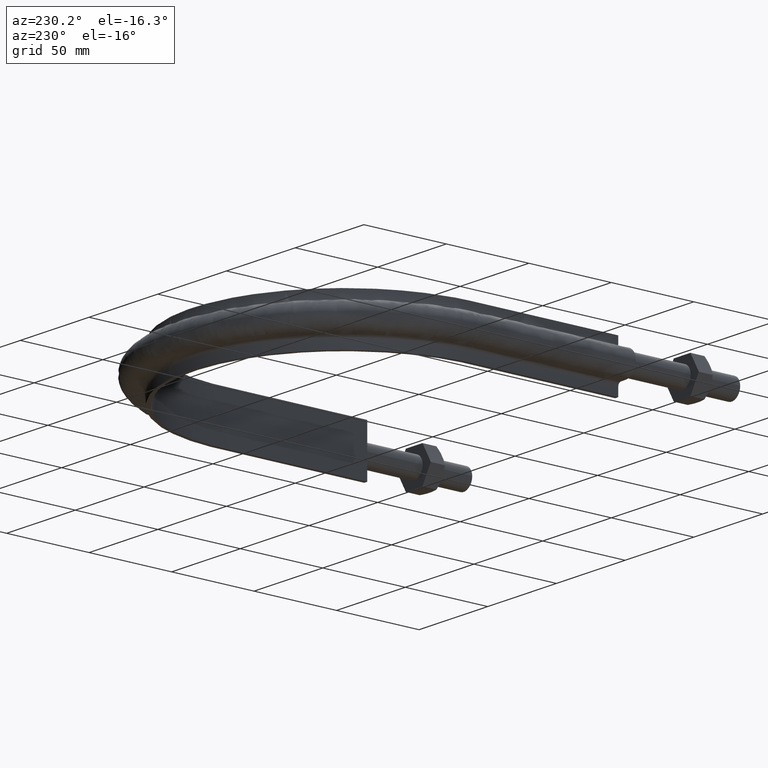
[diagram: clean part render]
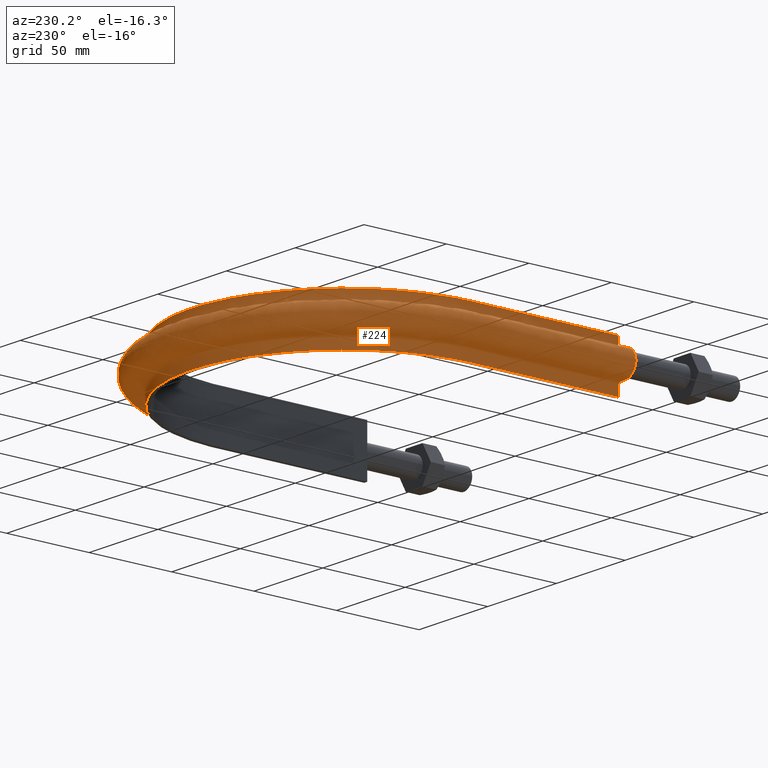
[diagram: same view with one face highlighted and labeled with its STEP entity id]
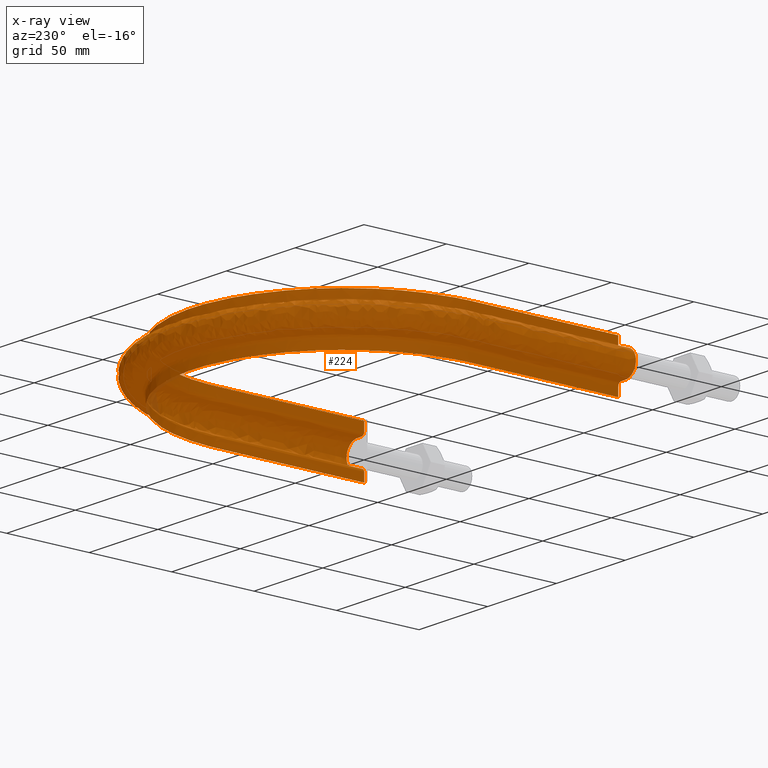
[diagram: x-ray of the same camera — body ghosted, the highlighted face saturated]
A machine part, auxiliary view. The second image highlights one B-rep face of the part: STEP entity #224.
The next image is the same camera in x-ray: the body ghosted, the highlighted face saturated — about 1% of this face is hidden behind the body in this view.
In plain terms, the highlighted face is a freeform B-spline surface patch.
Its self-contained STEP definition (entity closure, byte-faithful):
#224 = ADVANCED_FACE( '', ( #270 ), #271, .F. );
#270 = FACE_OUTER_BOUND( '', #367, .T. );
#271 = B_SPLINE_SURFACE_WITH_KNOTS( '', 3, 3, ( ( #368, #369, #370, #371, #372, #373, #374, #375, #376, #377, #378, #379, #380, #381, #382, #383, #384 ), ( #385, #386, #387, #388, #389, #390, #391, #392, #393, #394, #395, #396, #397, #398, #399, #400, #401 ), ( #402, #403, #404, #405, #406, #407, #408, #409, #410, #411, #412, #413, #414, #415, #416, #417, #418 ), ( #419, #420, #421, #422, #423, #424, #425, #426, #427, #428, #429, #430, #431, #432, #433, #434, #435 ), ( #436, #437, #438, #439, #440, #441, #442, #443, #444, #445, #446, #447, #448, #449, #450, #451, #452 ), ( #453, #454, #455, #456, #457, #458, #459, #460, #461, #462, #463, #464, #465, #466, #467, #468, #469 ), ( #470, #471, #472, #473, #474, #475, #476, #477, #478, #479, #480, #481, #482, #483, #484, #485, #486 ), ( #487, #488, #489, #490, #491, #492, #493, #494, #495, #496, #497, #498, #499, #500, #501, #502, #503 ), ( #504, #505, #506, #507, #508, #509, #510, #511, #512, #513, #514, #515, #516, #517, #518, #519, #520 ), ( #521, #522, #523, #524, #525, #526, #527, #528, #529, #530, #531, #532, #533, #534, #535, #536, #537 ), ( #538, #539, #540, #541, #542, #543, #544, #545, #546, #547, #548, #549, #550, #551, #552, #553, #554 ), ( #555, #556, #557, #558, #559, #560, #561, #562, #563, #564, #565, #566, #567, #568, #569, #570, #571 ), ( #572, #573, #574, #575, #576, #577, #578, #579, #580, #581, #582, #583, #584, #585, #586, #587, #588 ), ( #589, #590, #591, #592, #593, #594, #595, #596, #597, #598, #599, #600, #601, #602, #603, #604, #605 ), ( #606, #607, #608, #609, #610, #611, #612, #613, #614, #615, #616, #617, #618, #619, #620, #621, #622 ), ( #623, #624, #625, #626, #627, #628, #629, #630, #631, #632, #633, #634, #635, #636, #637, #638, #639 ), ( #640, #641, #642, #643, #644, #645, #646, #647, #648, #649, #650, #651, #652, #653, #654, #655, #656 ), ( #657, #658, #659, #660, #661, #662, #663, #664, #665, #666, #667, #668, #669, #670, #671, #672, #673 ), ( #674, #675, #676, #677, #678, #679, #680, #681, #682, #683, #684, #685, #686, #687, #688, #689, #690 ), ( #691, #692, #693, #694, #695, #696, #697, #698, #699, #700, #701, #702, #703, #704, #705, #706, #707 ), ( #708, #709, #710, #711, #712, #713, #714, #715, #716, #717, #718, #719, #720, #721, #722, #723, #724 ), ( #725, #726, #727, #728, #729, #730, #731, #732, #733, #734, #735, #736, #737, #738, #739, #740, #741 ), ( #742, #743, #744, #745, #746, #747, #748, #749, #750, #751, #752, #753, #754, #755, #756, #757, #758 ), ( #759, #760, #761, #762, #763, #764, #765, #766, #767, #768, #769, #770, #771, #772, #773, #774, #775 ), ( #776, #777, #778, #779, #780, #781, #782, #783, #784, #785, #786, #787, #788, #789, #790, #791, #792 ), ( #793, #794, #795, #796, #797, #798, #799, #800, #801, #802, #803, #804, #805, #806, #807, #808, #809 ), ( #810, #811, #812, #813, #814, #815, #816, #817, #818, #819, #820, #821, #822, #823, #824, #825, #826 ), ( #827, #828, #829, #830, #831, #832, #833, #834, #835, #836, #837, #838, #839, #840, #841, #842, #843 ), ( #844, #845, #846, #847, #848, #849, #850, #851, #852, #853, #854, #855, #856, #857, #858, #859, #860 ), ( #861, #862, #863, #864, #865, #866, #867, #868, #869, #870, #871, #872, #873, #874, #875, #876, #877 ), ( #878, #879, #880, #881, #882, #883, #884, #885, #886, #887, #888, #889, #890, #891, #892, #893, #894 ) ), .UNSPECIFIED., .F., .F., .F., ( 4, 3, 1, 1, 1, 3, 3, 1, 1, 1, 3, 3, 1, 1, 1, 3, 4 ), ( 4, 3, 1, 1, 1, 1, 1, 1, 1, 3, 4 ), ( 0.105263157894737, 0.157894736842105, 0.210526315789474, 0.263157894736842, 0.315789473684211, 0.368421052631579, 0.421052631578947, 0.473684210526316, 0.526315789473684, 0.578947368421053, 0.631578947368421, 0.684210526315789, 0.736842105263158, 0.789473684210526, 0.842105263157895, 0.894736842105263, 0.947368421052632 ), ( 0.000000000000000, 1.00000000000000, 2.00000000000000, 3.00000000000000, 4.00000000000000, 5.00000000000000, 6.00000000000000, 7.00000000000000, 8.00000000000000, 9.00000000000000, 10.0000000000000 ), .UNSPECIFIED. );
#367 = EDGE_LOOP( '', ( #1401, #1402, #1403, #1404 ) );
#368 = CARTESIAN_POINT( '', ( 92.4500000000000, 64.5000000000000, -15.0000000000000 ) );
#369 = CARTESIAN_POINT( '', ( 92.4500000000000, 94.2500000000000, -15.0000000000000 ) );
#370 = CARTESIAN_POINT( '', ( 92.4500000000000, 124.000000000000, -15.0000000000000 ) );
#371 = CARTESIAN_POINT( '', ( 92.4500000000000, 153.750000000000, -15.0000000000000 ) );
#372 = CARTESIAN_POINT( '', ( 92.4500000000000, 165.841331079143, -15.0000000000000 ) );
#373 = CARTESIAN_POINT( '', ( 87.6363015277602, 190.054191891286, -15.0000000000000 ) );
#374 = CARTESIAN_POINT( '', ( 67.0739213368505, 220.822831694701, -15.0000000000000 ) );
#375 = CARTESIAN_POINT( '', ( 36.3001446490162, 241.386612854088, -15.0000000000000 ) );
#376 = CARTESIAN_POINT( '', ( 6.16695562228040E-014, 248.606693572956, -15.0000000000000 ) );
#377 = CARTESIAN_POINT( '', ( -36.3001446490162, 241.386612854089, -15.0000000000000 ) );
#378 = CARTESIAN_POINT( '', ( -67.0739213368504, 220.822831694701, -15.0000000000000 ) );
#379 = CARTESIAN_POINT( '', ( -87.6363015277601, 190.054191891286, -15.0000000000000 ) );
#380 = CARTESIAN_POINT( '', ( -92.4500000000000, 165.841331079143, -15.0000000000000 ) );
#381 = CARTESIAN_POINT( '', ( -92.4500000000000, 153.750000000000, -15.0000000000000 ) );
#382 = CARTESIAN_POINT( '', ( -92.4499999999999, 124.000000000000, -15.0000000000000 ) );
#383 = CARTESIAN_POINT( '', ( -92.4499999999999, 94.2500000000000, -15.0000000000000 ) );
#384 = CARTESIAN_POINT( '', ( -92.4500000000000, 64.5000000000001, -15.0000000000000 ) );
#385 = CARTESIAN_POINT( '', ( 92.4500000000000, 64.5000000000000, -13.2666666666667 ) );
#386 = CARTESIAN_POINT( '', ( 92.4500000000000, 94.2500000000000, -13.2666666666667 ) );
#387 = CARTESIAN_POINT( '', ( 92.4500000000000, 124.000000000000, -13.2666666666667 ) );
#388 = CARTESIAN_POINT( '', ( 92.4500000000000, 153.750000000000, -13.2666666666667 ) );
#389 = CARTESIAN_POINT( '', ( 92.4500000000000, 165.841331079143, -13.2666666666667 ) );
#390 = CARTESIAN_POINT( '', ( 87.6363015277602, 190.054191891286, -13.2666666666667 ) );
#391 = CARTESIAN_POINT( '', ( 67.0739213368505, 220.822831694701, -13.2666666666667 ) );
#392 = CARTESIAN_POINT( '', ( 36.3001446490162, 241.386612854088, -13.2666666666667 ) );
#393 = CARTESIAN_POINT( '', ( 5.99348327468272E-014, 248.606693572956, -13.2666666666667 ) );
#394 = CARTESIAN_POINT( '', ( -36.3001446490162, 241.386612854089, -13.2666666666667 ) );
#395 = CARTESIAN_POINT( '', ( -67.0739213368504, 220.822831694701, -13.2666666666667 ) );
#396 = CARTESIAN_POINT( '', ( -87.6363015277601, 190.054191891286, -13.2666666666667 ) );
#397 = CARTESIAN_POINT( '', ( -92.4500000000000, 165.841331079143, -13.2666666666667 ) );
#398 = CARTESIAN_POINT( '', ( -92.4500000000000, 153.750000000000, -13.2666666666667 ) );
#399 = CARTESIAN_POINT( '', ( -92.4499999999999, 124.000000000000, -13.2666666666667 ) );
#400 = CARTESIAN_POINT( '', ( -92.4499999999999, 94.2500000000000, -13.2666666666667 ) );
#401 = CARTESIAN_POINT( '', ( -92.4500000000000, 64.5000000000001, -13.2666666666667 ) );
#402 = CARTESIAN_POINT( '', ( 92.4500000000000, 64.5000000000000, -11.5333333333333 ) );
#403 = CARTESIAN_POINT( '', ( 92.4500000000000, 94.2500000000000, -11.5333333333333 ) );
#404 = CARTESIAN_POINT( '', ( 92.4500000000000, 124.000000000000, -11.5333333333333 ) );
#405 = CARTESIAN_POINT( '', ( 92.4500000000000, 153.750000000000, -11.5333333333333 ) );
#406 = CARTESIAN_POINT( '', ( 92.4500000000000, 165.841331079143, -11.5333333333333 ) );
#407 = CARTESIAN_POINT( '', ( 87.6363015277601, 190.054191891286, -11.5333333333333 ) );
#408 = CARTESIAN_POINT( '', ( 67.0739213368505, 220.822831694701, -11.5333333333333 ) );
#409 = CARTESIAN_POINT( '', ( 36.3001446490162, 241.386612854088, -11.5333333333333 ) );
#410 = CARTESIAN_POINT( '', ( 6.68737266507344E-014, 248.606693572956, -11.5333333333333 ) );
#411 = CARTESIAN_POINT( '', ( -36.3001446490162, 241.386612854089, -11.5333333333333 ) );
#412 = CARTESIAN_POINT( '', ( -67.0739213368504, 220.822831694701, -11.5333333333333 ) );
#413 = CARTESIAN_POINT( '', ( -87.6363015277601, 190.054191891286, -11.5333333333333 ) );
#414 = CARTESIAN_POINT( '', ( -92.4500000000000, 165.841331079143, -11.5333333333333 ) );
#415 = CARTESIAN_POINT( '', ( -92.4500000000000, 153.750000000000, -11.5333333333333 ) );
#416 = CARTESIAN_POINT( '', ( -92.4499999999999, 124.000000000000, -11.5333333333333 ) );
#417 = CARTESIAN_POINT( '', ( -92.4499999999999, 94.2500000000000, -11.5333333333333 ) );
#418 = CARTESIAN_POINT( '', ( -92.4500000000000, 64.5000000000001, -11.5333333333333 ) );
#419 = CARTESIAN_POINT( '', ( 92.4500000000000, 64.5000000000000, -9.79999999999999 ) );
#420 = CARTESIAN_POINT( '', ( 92.4500000000000, 94.2500000000000, -9.79999999999999 ) );
#421 = CARTESIAN_POINT( '', ( 92.4500000000000, 124.000000000000, -9.79999999999999 ) );
#422 = CARTESIAN_POINT( '', ( 92.4500000000000, 153.750000000000, -9.79999999999999 ) );
#423 = CARTESIAN_POINT( '', ( 92.4500000000000, 165.841331079143, -9.79999999999999 ) );
#424 = CARTESIAN_POINT( '', ( 87.6363015277602, 190.054191891286, -9.79999999999999 ) );
#425 = CARTESIAN_POINT( '', ( 67.0739213368504, 220.822831694701, -9.79999999999999 ) );
#426 = CARTESIAN_POINT( '', ( 36.3001446490162, 241.386612854088, -9.79999999999998 ) );
#427 = CARTESIAN_POINT( '', ( 6.34042796987808E-014, 248.606693572956, -9.79999999999999 ) );
#428 = CARTESIAN_POINT( '', ( -36.3001446490162, 241.386612854089, -9.79999999999999 ) );
#429 = CARTESIAN_POINT( '', ( -67.0739213368504, 220.822831694701, -9.79999999999998 ) );
#430 = CARTESIAN_POINT( '', ( -87.6363015277601, 190.054191891286, -9.80000000000000 ) );
#431 = CARTESIAN_POINT( '', ( -92.4500000000000, 165.841331079143, -9.79999999999999 ) );
#432 = CARTESIAN_POINT( '', ( -92.4500000000000, 153.750000000000, -9.79999999999999 ) );
#433 = CARTESIAN_POINT( '', ( -92.4499999999999, 124.000000000000, -9.79999999999999 ) );
#434 = CARTESIAN_POINT( '', ( -92.4499999999999, 94.2500000000000, -9.79999999999999 ) );
#435 = CARTESIAN_POINT( '', ( -92.4499999999999, 64.5000000000001, -9.79999999999999 ) );
#436 = CARTESIAN_POINT( '', ( 92.4500000000000, 64.5000000000000, -9.53823584172332 ) );
#437 = CARTESIAN_POINT( '', ( 92.4500000000000, 94.2500000000000, -9.53823584172332 ) );
#438 = CARTESIAN_POINT( '', ( 92.4500000000000, 124.000000000000, -9.53823584172332 ) );
#439 = CARTESIAN_POINT( '', ( 92.4500000000000, 153.750000000000, -9.53823584172332 ) );
#440 = CARTESIAN_POINT( '', ( 92.4500000000000, 165.841331079143, -9.53823584172332 ) );
#441 = CARTESIAN_POINT( '', ( 87.6363015277602, 190.054191891286, -9.53823584172332 ) );
#442 = CARTESIAN_POINT( '', ( 67.0739213368504, 220.822831694701, -9.53823584172333 ) );
#443 = CARTESIAN_POINT( '', ( 36.3001446490162, 241.386612854088, -9.53823584172332 ) );
#444 = CARTESIAN_POINT( '', ( 6.34042796987808E-014, 248.606693572956, -9.53823584172333 ) );
#445 = CARTESIAN_POINT( '', ( -36.3001446490162, 241.386612854089, -9.53823584172333 ) );
#446 = CARTESIAN_POINT( '', ( -67.0739213368504, 220.822831694701, -9.53823584172332 ) );
#447 = CARTESIAN_POINT( '', ( -87.6363015277601, 190.054191891286, -9.53823584172333 ) );
#448 = CARTESIAN_POINT( '', ( -92.4500000000000, 165.841331079143, -9.53823584172332 ) );
#449 = CARTESIAN_POINT( '', ( -92.4500000000000, 153.750000000000, -9.53823584172332 ) );
#450 = CARTESIAN_POINT( '', ( -92.4499999999999, 124.000000000000, -9.53823584172332 ) );
#451 = CARTESIAN_POINT( '', ( -92.4499999999999, 94.2500000000000, -9.53823584172332 ) );
#452 = CARTESIAN_POINT( '', ( -92.4499999999999, 64.5000000000001, -9.53823584172332 ) );
#453 = CARTESIAN_POINT( '', ( 92.5541362568359, 64.5000000000000, -9.01470752517000 ) );
#454 = CARTESIAN_POINT( '', ( 92.5541362568359, 94.2500000000000, -9.01470752517000 ) );
#455 = CARTESIAN_POINT( '', ( 92.5541362568359, 124.000000000000, -9.01470752517000 ) );
#456 = CARTESIAN_POINT( '', ( 92.5541362568359, 153.750000000000, -9.01470752517000 ) );
#457 = CARTESIAN_POINT( '', ( 92.5541362568359, 165.855140405394, -9.01470752517000 ) );
#458 = CARTESIAN_POINT( '', ( 87.7350156046022, 190.094997142362, -9.01470752517000 ) );
#459 = CARTESIAN_POINT( '', ( 67.1494738203478, 220.898406647754, -9.01470752517000 ) );
#460 = CARTESIAN_POINT( '', ( 36.3410333584413, 241.485320511058, -9.01470752516999 ) );
#461 = CARTESIAN_POINT( '', ( 6.16826412098769E-014, 248.713544129725, -9.01470752517000 ) );
#462 = CARTESIAN_POINT( '', ( -36.3410333584413, 241.485320511058, -9.01470752517000 ) );
#463 = CARTESIAN_POINT( '', ( -67.1494738203477, 220.898406647754, -9.01470752516999 ) );
#464 = CARTESIAN_POINT( '', ( -87.7350156046021, 190.094997142362, -9.01470752517001 ) );
#465 = CARTESIAN_POINT( '', ( -92.5541362568359, 165.855140405394, -9.01470752517000 ) );
#466 = CARTESIAN_POINT( '', ( -92.5541362568359, 153.750000000000, -9.01470752517000 ) );
#467 = CARTESIAN_POINT( '', ( -92.5541362568358, 124.000000000000, -9.01470752517000 ) );
#468 = CARTESIAN_POINT( '', ( -92.5541362568358, 94.2500000000000, -9.01470752517000 ) );
#469 = CARTESIAN_POINT( '', ( -92.5541362568358, 64.5000000000001, -9.01470752517000 ) );
#470 = CARTESIAN_POINT( '', ( 92.9989687109389, 64.5000000000000, -8.34896871093886 ) );
#471 = CARTESIAN_POINT( '', ( 92.9989687109389, 94.2500000000000, -8.34896871093886 ) );
#472 = CARTESIAN_POINT( '', ( 92.9989687109389, 124.000000000000, -8.34896871093886 ) );
#473 = CARTESIAN_POINT( '', ( 92.9989687109389, 153.750000000000, -8.34896871093886 ) );
#474 = CARTESIAN_POINT( '', ( 92.9989687109389, 165.914128856416, -8.34896871093886 ) );
#475 = CARTESIAN_POINT( '', ( 88.1566864653604, 190.269302427843, -8.34896871093886 ) );
#476 = CARTESIAN_POINT( '', ( 67.4722067249944, 221.221235534220, -8.34896871093886 ) );
#477 = CARTESIAN_POINT( '', ( 36.5156951478249, 241.906963948439, -8.34896871093886 ) );
#478 = CARTESIAN_POINT( '', ( 6.00038120697290E-014, 249.169971092189, -8.34896871093886 ) );
#479 = CARTESIAN_POINT( '', ( -36.5156951478249, 241.906963948439, -8.34896871093886 ) );
#480 = CARTESIAN_POINT( '', ( -67.4722067249944, 221.221235534220, -8.34896871093886 ) );
#481 = CARTESIAN_POINT( '', ( -88.1566864653603, 190.269302427843, -8.34896871093887 ) );
#482 = CARTESIAN_POINT( '', ( -92.9989687109388, 165.914128856416, -8.34896871093886 ) );
#483 = CARTESIAN_POINT( '', ( -92.9989687109388, 153.750000000000, -8.34896871093886 ) );
#484 = CARTESIAN_POINT( '', ( -92.9989687109388, 124.000000000000, -8.34896871093886 ) );
#485 = CARTESIAN_POINT( '', ( -92.9989687109388, 94.2500000000000, -8.34896871093886 ) );
#486 = CARTESIAN_POINT( '', ( -92.9989687109388, 64.5000000000001, -8.34896871093886 ) );
#487 = CARTESIAN_POINT( '', ( 93.6647075251700, 64.5000000000000, -7.90413625683590 ) );
#488 = CARTESIAN_POINT( '', ( 93.6647075251700, 94.2500000000000, -7.90413625683590 ) );
#489 = CARTESIAN_POINT( '', ( 93.6647075251700, 124.000000000000, -7.90413625683590 ) );
#490 = CARTESIAN_POINT( '', ( 93.6647075251700, 153.750000000000, -7.90413625683590 ) );
#491 = CARTESIAN_POINT( '', ( 93.6647075251700, 166.002411312146, -7.90413625683590 ) );
#492 = CARTESIAN_POINT( '', ( 88.7877615055194, 190.530168722556, -7.90413625683590 ) );
#493 = CARTESIAN_POINT( '', ( 67.9552106498903, 221.704383106061, -7.90413625683590 ) );
#494 = CARTESIAN_POINT( '', ( 36.7770949883339, 242.537997946613, -7.90413625683589 ) );
#495 = CARTESIAN_POINT( '', ( 5.66180169028773E-014, 249.853062314448, -7.90413625683590 ) );
#496 = CARTESIAN_POINT( '', ( -36.7770949883339, 242.537997946613, -7.90413625683590 ) );
#497 = CARTESIAN_POINT( '', ( -67.9552106498903, 221.704383106061, -7.90413625683589 ) );
#498 = CARTESIAN_POINT( '', ( -88.7877615055192, 190.530168722556, -7.90413625683590 ) );
#499 = CARTESIAN_POINT( '', ( -93.6647075251700, 166.002411312146, -7.90413625683590 ) );
#500 = CARTESIAN_POINT( '', ( -93.6647075251700, 153.750000000000, -7.90413625683590 ) );
#501 = CARTESIAN_POINT( '', ( -93.6647075251699, 124.000000000000, -7.90413625683590 ) );
#502 = CARTESIAN_POINT( '', ( -93.6647075251699, 94.2500000000000, -7.90413625683590 ) );
#503 = CARTESIAN_POINT( '', ( -93.6647075251700, 64.5000000000001, -7.90413625683590 ) );
#504 = CARTESIAN_POINT( '', ( 94.1882358417233, 64.5000000000000, -7.79999999999999 ) );
#505 = CARTESIAN_POINT( '', ( 94.1882358417233, 94.2500000000000, -7.79999999999999 ) );
#506 = CARTESIAN_POINT( '', ( 94.1882358417233, 124.000000000000, -7.79999999999999 ) );
#507 = CARTESIAN_POINT( '', ( 94.1882358417233, 153.750000000000, -7.79999999999999 ) );
#508 = CARTESIAN_POINT( '', ( 94.1882358417234, 166.071835483370, -7.79999999999999 ) );
#509 = CARTESIAN_POINT( '', ( 89.2840306824560, 190.735310572779, -7.79999999999999 ) );
#510 = CARTESIAN_POINT( '', ( 68.3350386339045, 222.084324052159, -7.79999999999999 ) );
#511 = CARTESIAN_POINT( '', ( 36.9826564120088, 243.034234848669, -7.79999999999998 ) );
#512 = CARTESIAN_POINT( '', ( 6.18879700030734E-014, 250.390236338250, -7.79999999999999 ) );
#513 = CARTESIAN_POINT( '', ( -36.9826564120088, 243.034234848669, -7.79999999999999 ) );
#514 = CARTESIAN_POINT( '', ( -68.3350386339044, 222.084324052159, -7.79999999999998 ) );
#515 = CARTESIAN_POINT( '', ( -89.2840306824558, 190.735310572779, -7.80000000000000 ) );
#516 = CARTESIAN_POINT( '', ( -94.1882358417233, 166.071835483370, -7.79999999999999 ) );
#517 = CARTESIAN_POINT( '', ( -94.1882358417233, 153.750000000000, -7.79999999999999 ) );
#518 = CARTESIAN_POINT( '', ( -94.1882358417233, 124.000000000000, -7.79999999999999 ) );
#519 = CARTESIAN_POINT( '', ( -94.1882358417233, 94.2500000000000, -7.79999999999999 ) );
#520 = CARTESIAN_POINT( '', ( -94.1882358417233, 64.5000000000001, -7.79999999999999 ) );
#521 = CARTESIAN_POINT( '', ( 94.4500000000000, 64.5000000000000, -7.79999999999999 ) );
#522 = CARTESIAN_POINT( '', ( 94.4500000000000, 94.2500000000000, -7.79999999999999 ) );
#523 = CARTESIAN_POINT( '', ( 94.4500000000000, 124.000000000000, -7.79999999999999 ) );
#524 = CARTESIAN_POINT( '', ( 94.4500000000000, 153.750000000000, -7.79999999999999 ) );
#525 = CARTESIAN_POINT( '', ( 94.4500000000000, 166.106547568982, -7.79999999999999 ) );
#526 = CARTESIAN_POINT( '', ( 89.5321652709242, 190.837881497890, -7.79999999999999 ) );
#527 = CARTESIAN_POINT( '', ( 68.5249526259116, 222.274294525207, -7.79999999999999 ) );
#528 = CARTESIAN_POINT( '', ( 37.0854371238462, 243.282353299697, -7.79999999999998 ) );
#529 = CARTESIAN_POINT( '', ( 6.19208613392062E-014, 250.658823350152, -7.79999999999999 ) );
#530 = CARTESIAN_POINT( '', ( -37.0854371238462, 243.282353299697, -7.79999999999999 ) );
#531 = CARTESIAN_POINT( '', ( -68.5249526259115, 222.274294525207, -7.79999999999998 ) );
#532 = CARTESIAN_POINT( '', ( -89.5321652709241, 190.837881497890, -7.80000000000000 ) );
#533 = CARTESIAN_POINT( '', ( -94.4500000000000, 166.106547568982, -7.79999999999999 ) );
#534 = CARTESIAN_POINT( '', ( -94.4500000000000, 153.750000000000, -7.79999999999999 ) );
#535 = CARTESIAN_POINT( '', ( -94.4499999999999, 124.000000000000, -7.79999999999999 ) );
#536 = CARTESIAN_POINT( '', ( -94.4499999999999, 94.2500000000000, -7.79999999999999 ) );
#537 = CARTESIAN_POINT( '', ( -94.4499999999999, 64.5000000000001, -7.79999999999999 ) );
#538 = CARTESIAN_POINT( '', ( 95.4666666666667, 64.5000000000000, -7.79999999999999 ) );
#539 = CARTESIAN_POINT( '', ( 95.4666666666667, 94.2500000000000, -7.79999999999999 ) );
#540 = CARTESIAN_POINT( '', ( 95.4666666666667, 124.000000000000, -7.79999999999999 ) );
#541 = CARTESIAN_POINT( '', ( 95.4666666666667, 153.750000000000, -7.79999999999999 ) );
#542 = CARTESIAN_POINT( '', ( 95.4666666666667, 166.241365951317, -7.79999999999999 ) );
#543 = CARTESIAN_POINT( '', ( 90.4958960070327, 191.236257047914, -7.79999999999999 ) );
#544 = CARTESIAN_POINT( '', ( 69.2625601978510, 223.012121464048, -7.80000000000000 ) );
#545 = CARTESIAN_POINT( '', ( 37.4846274652181, 244.246021359548, -7.79999999999999 ) );
#546 = CARTESIAN_POINT( '', ( 6.55180550586642E-014, 251.701989320226, -7.79999999999999 ) );
#547 = CARTESIAN_POINT( '', ( -37.4846274652181, 244.246021359548, -7.79999999999999 ) );
#548 = CARTESIAN_POINT( '', ( -69.2625601978509, 223.012121464048, -7.79999999999999 ) );
#549 = CARTESIAN_POINT( '', ( -90.4958960070326, 191.236257047914, -7.80000000000000 ) );
#550 = CARTESIAN_POINT( '', ( -95.4666666666666, 166.241365951317, -7.79999999999999 ) );
#551 = CARTESIAN_POINT( '', ( -95.4666666666666, 153.750000000000, -7.79999999999999 ) );
#552 = CARTESIAN_POINT( '', ( -95.4666666666666, 124.000000000000, -7.79999999999999 ) );
#553 = CARTESIAN_POINT( '', ( -95.4666666666666, 94.2500000000000, -7.79999999999999 ) );
#554 = CARTESIAN_POINT( '', ( -95.4666666666666, 64.5000000000001, -7.79999999999999 ) );
#555 = CARTESIAN_POINT( '', ( 96.4833333333333, 64.5000000000000, -7.79999999999999 ) );
#556 = CARTESIAN_POINT( '', ( 96.4833333333333, 94.2500000000000, -7.79999999999999 ) );
#557 = CARTESIAN_POINT( '', ( 96.4833333333333, 124.000000000000, -7.79999999999999 ) );
#558 = CARTESIAN_POINT( '', ( 96.4833333333333, 153.750000000000, -7.79999999999999 ) );
#559 = CARTESIAN_POINT( '', ( 96.4833333333334, 166.376184333652, -7.79999999999999 ) );
#560 = CARTESIAN_POINT( '', ( 91.4596267431411, 191.634632597938, -7.79999999999999 ) );
#561 = CARTESIAN_POINT( '', ( 70.0001677697904, 223.749948402889, -7.80000000000000 ) );
#562 = CARTESIAN_POINT( '', ( 37.8838178065901, 245.209689419399, -7.79999999999999 ) );
#563 = CARTESIAN_POINT( '', ( 6.39110783501919E-014, 252.745155290301, -7.79999999999999 ) );
#564 = CARTESIAN_POINT( '', ( -37.8838178065900, 245.209689419399, -7.79999999999999 ) );
#565 = CARTESIAN_POINT( '', ( -70.0001677697904, 223.749948402889, -7.79999999999999 ) );
#566 = CARTESIAN_POINT( '', ( -91.4596267431410, 191.634632597938, -7.80000000000000 ) );
#567 = CARTESIAN_POINT( '', ( -96.4833333333333, 166.376184333652, -7.79999999999999 ) );
#568 = CARTESIAN_POINT( '', ( -96.4833333333333, 153.750000000000, -7.79999999999999 ) );
#569 = CARTESIAN_POINT( '', ( -96.4833333333333, 124.000000000000, -7.79999999999999 ) );
#570 = CARTESIAN_POINT( '', ( -96.4833333333333, 94.2500000000000, -7.79999999999999 ) );
#571 = CARTESIAN_POINT( '', ( -96.4833333333333, 64.5000000000001, -7.79999999999999 ) );
#572 = CARTESIAN_POINT( '', ( 97.5000000000000, 64.5000000000000, -7.79999999999999 ) );
#573 = CARTESIAN_POINT( '', ( 97.5000000000000, 94.2500000000000, -7.79999999999999 ) );
#574 = CARTESIAN_POINT( '', ( 97.5000000000000, 124.000000000000, -7.79999999999999 ) );
#575 = CARTESIAN_POINT( '', ( 97.5000000000000, 153.750000000000, -7.79999999999999 ) );
#576 = CARTESIAN_POINT( '', ( 97.5000000000000, 166.511002715987, -7.79999999999999 ) );
#577 = CARTESIAN_POINT( '', ( 92.4233574792495, 192.033008147962, -7.79999999999999 ) );
#578 = CARTESIAN_POINT( '', ( 70.7377753417298, 224.487775341730, -7.80000000000000 ) );
#579 = CARTESIAN_POINT( '', ( 38.2830081479620, 246.173357479249, -7.79999999999999 ) );
#580 = CARTESIAN_POINT( '', ( 6.75082720696500E-014, 253.788321260375, -7.79999999999999 ) );
#581 = CARTESIAN_POINT( '', ( -38.2830081479619, 246.173357479249, -7.80000000000000 ) );
#582 = CARTESIAN_POINT( '', ( -70.7377753417297, 224.487775341730, -7.79999999999999 ) );
#583 = CARTESIAN_POINT( '', ( -92.4233574792494, 192.033008147962, -7.80000000000000 ) );
#584 = CARTESIAN_POINT( '', ( -97.5000000000000, 166.511002715987, -7.79999999999999 ) );
#585 = CARTESIAN_POINT( '', ( -97.5000000000000, 153.750000000000, -7.79999999999999 ) );
#586 = CARTESIAN_POINT( '', ( -97.4999999999999, 124.000000000000, -7.79999999999999 ) );
#587 = CARTESIAN_POINT( '', ( -97.4999999999999, 94.2500000000000, -7.79999999999999 ) );
#588 = CARTESIAN_POINT( '', ( -97.5000000000000, 64.5000000000001, -7.79999999999999 ) );
#589 = CARTESIAN_POINT( '', ( 99.5373902247172, 64.5000000000000, -7.79999999999999 ) );
#590 = CARTESIAN_POINT( '', ( 99.5373902247172, 94.2500000000000, -7.79999999999999 ) );
#591 = CARTESIAN_POINT( '', ( 99.5373902247172, 124.000000000000, -7.79999999999999 ) );
#592 = CARTESIAN_POINT( '', ( 99.5373902247172, 153.750000000000, -7.79999999999999 ) );
#593 = CARTESIAN_POINT( '', ( 99.5373902247172, 166.781177457904, -7.79999999999999 ) );
#594 = CARTESIAN_POINT( '', ( 94.3546646081086, 192.831348919816, -7.79999999999999 ) );
#595 = CARTESIAN_POINT( '', ( 72.2159338237757, 225.966373432937, -7.79999999999999 ) );
#596 = CARTESIAN_POINT( '', ( 39.0829817538433, 248.104539005491, -7.79999999999998 ) );
#597 = CARTESIAN_POINT( '', ( 6.42948284114860E-014, 255.878815834330, -7.79999999999999 ) );
#598 = CARTESIAN_POINT( '', ( -39.0829817538432, 248.104539005491, -7.79999999999999 ) );
#599 = CARTESIAN_POINT( '', ( -72.2159338237757, 225.966373432937, -7.79999999999998 ) );
#600 = CARTESIAN_POINT( '', ( -94.3546646081085, 192.831348919816, -7.80000000000000 ) );
#601 = CARTESIAN_POINT( '', ( -99.5373902247172, 166.781177457904, -7.79999999999999 ) );
#602 = CARTESIAN_POINT( '', ( -99.5373902247172, 153.750000000000, -7.79999999999999 ) );
#603 = CARTESIAN_POINT( '', ( -99.5373902247171, 124.000000000000, -7.79999999999999 ) );
#604 = CARTESIAN_POINT( '', ( -99.5373902247171, 94.2500000000000, -7.79999999999999 ) );
#605 = CARTESIAN_POINT( '', ( -99.5373902247171, 64.5000000000001, -7.79999999999999 ) );
#606 = CARTESIAN_POINT( '', ( 103.612170674152, 64.5000000000000, -6.11217067415154 ) );
#607 = CARTESIAN_POINT( '', ( 103.612170674152, 94.2500000000000, -6.11217067415154 ) );
#608 = CARTESIAN_POINT( '', ( 103.612170674152, 124.000000000000, -6.11217067415154 ) );
#609 = CARTESIAN_POINT( '', ( 103.612170674152, 153.750000000000, -6.11217067415154 ) );
#610 = CARTESIAN_POINT( '', ( 103.612170674152, 167.321526941737, -6.11217067415154 ) );
#611 = CARTESIAN_POINT( '', ( 98.2172788658268, 194.428030463524, -6.11217067415154 ) );
#612 = CARTESIAN_POINT( '', ( 75.1722507878677, 228.923569615351, -6.11217067415154 ) );
#613 = CARTESIAN_POINT( '', ( 40.6829289656058, 251.966902057974, -6.11217067415154 ) );
#614 = CARTESIAN_POINT( '', ( 6.65415584750421E-014, 260.059804982240, -6.11217067415154 ) );
#615 = CARTESIAN_POINT( '', ( -40.6829289656058, 251.966902057974, -6.11217067415154 ) );
#616 = CARTESIAN_POINT( '', ( -75.1722507878676, 228.923569615351, -6.11217067415154 ) );
#617 = CARTESIAN_POINT( '', ( -98.2172788658267, 194.428030463524, -6.11217067415155 ) );
#618 = CARTESIAN_POINT( '', ( -103.612170674152, 167.321526941737, -6.11217067415154 ) );
#619 = CARTESIAN_POINT( '', ( -103.612170674152, 153.750000000000, -6.11217067415154 ) );
#620 = CARTESIAN_POINT( '', ( -103.612170674151, 124.000000000000, -6.11217067415154 ) );
#621 = CARTESIAN_POINT( '', ( -103.612170674151, 94.2500000000001, -6.11217067415154 ) );
#622 = CARTESIAN_POINT( '', ( -103.612170674152, 64.5000000000001, -6.11217067415154 ) );
#623 = CARTESIAN_POINT( '', ( 106.143914662924, 64.5000000000000, -2.58929722408951E-015 ) );
#624 = CARTESIAN_POINT( '', ( 106.143914662924, 94.2500000000000, -2.58929722408951E-015 ) );
#625 = CARTESIAN_POINT( '', ( 106.143914662924, 124.000000000000, -2.58929722408951E-015 ) );
#626 = CARTESIAN_POINT( '', ( 106.143914662924, 153.750000000000, -2.58929722408951E-015 ) );
#627 = CARTESIAN_POINT( '', ( 106.143914662924, 167.657257068674, -2.58929722408951E-015 ) );
#628 = CARTESIAN_POINT( '', ( 100.617199683471, 195.420081188816, -2.58929722408951E-015 ) );
#629 = CARTESIAN_POINT( '', ( 77.0090706596684, 230.760935763382, -2.58929722408951E-015 ) );
#630 = CARTESIAN_POINT( '', ( 41.6770087168955, 254.366666796695, -2.58929722408951E-015 ) );
#631 = CARTESIAN_POINT( '', ( 6.33902316319880E-014, 262.657538596039, -2.58929722408951E-015 ) );
#632 = CARTESIAN_POINT( '', ( -41.6770087168954, 254.366666796695, -2.58929722408951E-015 ) );
#633 = CARTESIAN_POINT( '', ( -77.0090706596684, 230.760935763382, -2.58929722408951E-015 ) );
#634 = CARTESIAN_POINT( '', ( -100.617199683471, 195.420081188816, -2.58929722408951E-015 ) );
#635 = CARTESIAN_POINT( '', ( -106.143914662924, 167.657257068674, -2.58929722408951E-015 ) );
#636 = CARTESIAN_POINT( '', ( -106.143914662924, 153.750000000000, -2.58929722408951E-015 ) );
#637 = CARTESIAN_POINT( '', ( -106.143914662924, 124.000000000000, -2.58929722408951E-015 ) );
#638 = CARTESIAN_POINT( '', ( -106.143914662924, 94.2500000000001, -2.58929722408951E-015 ) );
#639 = CARTESIAN_POINT( '', ( -106.143914662924, 64.5000000000001, -2.58929722408951E-015 ) );
#640 = CARTESIAN_POINT( '', ( 103.612170674152, 64.5000000000000, 6.11217067415154 ) );
#641 = CARTESIAN_POINT( '', ( 103.612170674152, 94.2500000000000, 6.11217067415154 ) );
#642 = CARTESIAN_POINT( '', ( 103.612170674152, 124.000000000000, 6.11217067415154 ) );
#643 = CARTESIAN_POINT( '', ( 103.612170674152, 153.750000000000, 6.11217067415154 ) );
#644 = CARTESIAN_POINT( '', ( 103.612170674152, 167.321526941737, 6.11217067415154 ) );
#645 = CARTESIAN_POINT( '', ( 98.2172788658268, 194.428030463524, 6.11217067415154 ) );
#646 = CARTESIAN_POINT( '', ( 75.1722507878677, 228.923569615351, 6.11217067415154 ) );
#647 = CARTESIAN_POINT( '', ( 40.6829289656058, 251.966902057974, 6.11217067415153 ) );
#648 = CARTESIAN_POINT( '', ( 6.65415584750421E-014, 260.059804982240, 6.11217067415154 ) );
#649 = CARTESIAN_POINT( '', ( -40.6829289656058, 251.966902057974, 6.11217067415154 ) );
#650 = CARTESIAN_POINT( '', ( -75.1722507878676, 228.923569615351, 6.11217067415153 ) );
#651 = CARTESIAN_POINT( '', ( -98.2172788658267, 194.428030463524, 6.11217067415154 ) );
#652 = CARTESIAN_POINT( '', ( -103.612170674152, 167.321526941737, 6.11217067415154 ) );
#653 = CARTESIAN_POINT( '', ( -103.612170674152, 153.750000000000, 6.11217067415154 ) );
#654 = CARTESIAN_POINT( '', ( -103.612170674151, 124.000000000000, 6.11217067415154 ) );
#655 = CARTESIAN_POINT( '', ( -103.612170674151, 94.2500000000001, 6.11217067415154 ) );
#656 = CARTESIAN_POINT( '', ( -103.612170674152, 64.5000000000001, 6.11217067415154 ) );
#657 = CARTESIAN_POINT( '', ( 99.5373902247172, 64.5000000000000, 7.79999999999998 ) );
#658 = CARTESIAN_POINT( '', ( 99.5373902247172, 94.2500000000000, 7.79999999999998 ) );
#659 = CARTESIAN_POINT( '', ( 99.5373902247172, 124.000000000000, 7.79999999999998 ) );
#660 = CARTESIAN_POINT( '', ( 99.5373902247172, 153.750000000000, 7.79999999999998 ) );
#661 = CARTESIAN_POINT( '', ( 99.5373902247172, 166.781177457904, 7.79999999999998 ) );
#662 = CARTESIAN_POINT( '', ( 94.3546646081086, 192.831348919816, 7.79999999999998 ) );
#663 = CARTESIAN_POINT( '', ( 72.2159338237757, 225.966373432937, 7.79999999999998 ) );
#664 = CARTESIAN_POINT( '', ( 39.0829817538433, 248.104539005491, 7.79999999999998 ) );
#665 = CARTESIAN_POINT( '', ( 6.42948284114860E-014, 255.878815834330, 7.79999999999998 ) );
#666 = CARTESIAN_POINT( '', ( -39.0829817538432, 248.104539005491, 7.79999999999999 ) );
#667 = CARTESIAN_POINT( '', ( -72.2159338237757, 225.966373432937, 7.79999999999998 ) );
#668 = CARTESIAN_POINT( '', ( -94.3546646081085, 192.831348919816, 7.79999999999999 ) );
#669 = CARTESIAN_POINT( '', ( -99.5373902247172, 166.781177457904, 7.79999999999998 ) );
#670 = CARTESIAN_POINT( '', ( -99.5373902247172, 153.750000000000, 7.79999999999998 ) );
#671 = CARTESIAN_POINT( '', ( -99.5373902247171, 124.000000000000, 7.79999999999998 ) );
#672 = CARTESIAN_POINT( '', ( -99.5373902247171, 94.2500000000000, 7.79999999999998 ) );
#673 = CARTESIAN_POINT( '', ( -99.5373902247171, 64.5000000000001, 7.79999999999998 ) );
#674 = CARTESIAN_POINT( '', ( 97.5000000000000, 64.5000000000000, 7.79999999999998 ) );
#675 = CARTESIAN_POINT( '', ( 97.5000000000000, 94.2500000000000, 7.79999999999998 ) );
#676 = CARTESIAN_POINT( '', ( 97.5000000000000, 124.000000000000, 7.79999999999998 ) );
#677 = CARTESIAN_POINT( '', ( 97.5000000000000, 153.750000000000, 7.79999999999998 ) );
#678 = CARTESIAN_POINT( '', ( 97.5000000000000, 166.511002715987, 7.79999999999998 ) );
#679 = CARTESIAN_POINT( '', ( 92.4233574792495, 192.033008147962, 7.79999999999998 ) );
#680 = CARTESIAN_POINT( '', ( 70.7377753417298, 224.487775341730, 7.79999999999998 ) );
#681 = CARTESIAN_POINT( '', ( 38.2830081479620, 246.173357479249, 7.79999999999998 ) );
#682 = CARTESIAN_POINT( '', ( 6.40388251176964E-014, 253.788321260375, 7.79999999999998 ) );
#683 = CARTESIAN_POINT( '', ( -38.2830081479619, 246.173357479249, 7.79999999999998 ) );
#684 = CARTESIAN_POINT( '', ( -70.7377753417297, 224.487775341730, 7.79999999999998 ) );
#685 = CARTESIAN_POINT( '', ( -92.4233574792494, 192.033008147962, 7.79999999999999 ) );
#686 = CARTESIAN_POINT( '', ( -97.5000000000000, 166.511002715987, 7.79999999999998 ) );
#687 = CARTESIAN_POINT( '', ( -97.5000000000000, 153.750000000000, 7.79999999999998 ) );
#688 = CARTESIAN_POINT( '', ( -97.4999999999999, 124.000000000000, 7.79999999999998 ) );
#689 = CARTESIAN_POINT( '', ( -97.4999999999999, 94.2500000000000, 7.79999999999998 ) );
#690 = CARTESIAN_POINT( '', ( -97.5000000000000, 64.5000000000001, 7.79999999999998 ) );
#691 = CARTESIAN_POINT( '', ( 96.4833333333333, 64.5000000000000, 7.79999999999999 ) );
#692 = CARTESIAN_POINT( '', ( 96.4833333333333, 94.2500000000000, 7.79999999999999 ) );
#693 = CARTESIAN_POINT( '', ( 96.4833333333333, 124.000000000000, 7.79999999999999 ) );
#694 = CARTESIAN_POINT( '', ( 96.4833333333333, 153.750000000000, 7.79999999999999 ) );
#695 = CARTESIAN_POINT( '', ( 96.4833333333334, 166.376184333652, 7.79999999999999 ) );
#696 = CARTESIAN_POINT( '', ( 91.4596267431411, 191.634632597938, 7.79999999999999 ) );
#697 = CARTESIAN_POINT( '', ( 70.0001677697904, 223.749948402889, 7.80000000000000 ) );
#698 = CARTESIAN_POINT( '', ( 37.8838178065900, 245.209689419399, 7.79999999999999 ) );
#699 = CARTESIAN_POINT( '', ( 5.35027374943311E-014, 252.745155290301, 7.79999999999999 ) );
#700 = CARTESIAN_POINT( '', ( -37.8838178065900, 245.209689419399, 7.79999999999999 ) );
#701 = CARTESIAN_POINT( '', ( -70.0001677697904, 223.749948402889, 7.79999999999999 ) );
#702 = CARTESIAN_POINT( '', ( -91.4596267431410, 191.634632597938, 7.80000000000000 ) );
#703 = CARTESIAN_POINT( '', ( -96.4833333333333, 166.376184333652, 7.79999999999999 ) );
#704 = CARTESIAN_POINT( '', ( -96.4833333333333, 153.750000000000, 7.79999999999999 ) );
#705 = CARTESIAN_POINT( '', ( -96.4833333333333, 124.000000000000, 7.79999999999999 ) );
#706 = CARTESIAN_POINT( '', ( -96.4833333333333, 94.2500000000000, 7.79999999999999 ) );
#707 = CARTESIAN_POINT( '', ( -96.4833333333333, 64.5000000000001, 7.79999999999999 ) );
#708 = CARTESIAN_POINT( '', ( 95.4666666666667, 64.5000000000000, 7.79999999999999 ) );
#709 = CARTESIAN_POINT( '', ( 95.4666666666667, 94.2500000000000, 7.79999999999999 ) );
#710 = CARTESIAN_POINT( '', ( 95.4666666666667, 124.000000000000, 7.79999999999999 ) );
#711 = CARTESIAN_POINT( '', ( 95.4666666666667, 153.750000000000, 7.79999999999999 ) );
#712 = CARTESIAN_POINT( '', ( 95.4666666666667, 166.241365951317, 7.79999999999999 ) );
#713 = CARTESIAN_POINT( '', ( 90.4958960070327, 191.236257047914, 7.79999999999999 ) );
#714 = CARTESIAN_POINT( '', ( 69.2625601978510, 223.012121464048, 7.80000000000000 ) );
#715 = CARTESIAN_POINT( '', ( 37.4846274652181, 244.246021359548, 7.79999999999999 ) );
#716 = CARTESIAN_POINT( '', ( 5.68444376787802E-014, 251.701989320226, 7.79999999999999 ) );
#717 = CARTESIAN_POINT( '', ( -37.4846274652181, 244.246021359548, 7.79999999999999 ) );
#718 = CARTESIAN_POINT( '', ( -69.2625601978510, 223.012121464048, 7.79999999999999 ) );
#719 = CARTESIAN_POINT( '', ( -90.4958960070326, 191.236257047914, 7.80000000000000 ) );
#720 = CARTESIAN_POINT( '', ( -95.4666666666666, 166.241365951317, 7.79999999999999 ) );
#721 = CARTESIAN_POINT( '', ( -95.4666666666666, 153.750000000000, 7.79999999999999 ) );
#722 = CARTESIAN_POINT( '', ( -95.4666666666666, 124.000000000000, 7.79999999999999 ) );
#723 = CARTESIAN_POINT( '', ( -95.4666666666666, 94.2500000000000, 7.79999999999999 ) );
#724 = CARTESIAN_POINT( '', ( -95.4666666666666, 64.5000000000001, 7.79999999999999 ) );
#725 = CARTESIAN_POINT( '', ( 94.4500000000000, 64.5000000000000, 7.79999999999999 ) );
#726 = CARTESIAN_POINT( '', ( 94.4500000000000, 94.2500000000000, 7.79999999999999 ) );
#727 = CARTESIAN_POINT( '', ( 94.4500000000000, 124.000000000000, 7.79999999999999 ) );
#728 = CARTESIAN_POINT( '', ( 94.4500000000000, 153.750000000000, 7.79999999999999 ) );
#729 = CARTESIAN_POINT( '', ( 94.4500000000000, 166.106547568982, 7.79999999999999 ) );
#730 = CARTESIAN_POINT( '', ( 89.5321652709243, 190.837881497890, 7.79999999999999 ) );
#731 = CARTESIAN_POINT( '', ( 68.5249526259116, 222.274294525207, 7.80000000000000 ) );
#732 = CARTESIAN_POINT( '', ( 37.0854371238462, 243.282353299697, 7.79999999999999 ) );
#733 = CARTESIAN_POINT( '', ( 5.32472439593221E-014, 250.658823350152, 7.79999999999999 ) );
#734 = CARTESIAN_POINT( '', ( -37.0854371238462, 243.282353299697, 7.80000000000000 ) );
#735 = CARTESIAN_POINT( '', ( -68.5249526259115, 222.274294525207, 7.79999999999999 ) );
#736 = CARTESIAN_POINT( '', ( -89.5321652709241, 190.837881497890, 7.80000000000000 ) );
#737 = CARTESIAN_POINT( '', ( -94.4500000000000, 166.106547568982, 7.79999999999999 ) );
#738 = CARTESIAN_POINT( '', ( -94.4500000000000, 153.750000000000, 7.79999999999999 ) );
#739 = CARTESIAN_POINT( '', ( -94.4499999999999, 124.000000000000, 7.79999999999999 ) );
#740 = CARTESIAN_POINT( '', ( -94.4499999999999, 94.2500000000000, 7.79999999999999 ) );
#741 = CARTESIAN_POINT( '', ( -94.4500000000000, 64.5000000000001, 7.79999999999999 ) );
#742 = CARTESIAN_POINT( '', ( 94.1882358417234, 64.5000000000000, 7.79999999999999 ) );
#743 = CARTESIAN_POINT( '', ( 94.1882358417234, 94.2500000000000, 7.79999999999999 ) );
#744 = CARTESIAN_POINT( '', ( 94.1882358417234, 124.000000000000, 7.79999999999999 ) );
#745 = CARTESIAN_POINT( '', ( 94.1882358417234, 153.750000000000, 7.79999999999999 ) );
#746 = CARTESIAN_POINT( '', ( 94.1882358417234, 166.071835483370, 7.79999999999999 ) );
#747 = CARTESIAN_POINT( '', ( 89.2840306824559, 190.735310572779, 7.79999999999999 ) );
#748 = CARTESIAN_POINT( '', ( 68.3350386339045, 222.084324052159, 7.80000000000000 ) );
#749 = CARTESIAN_POINT( '', ( 36.9826564120088, 243.034234848669, 7.79999999999999 ) );
#750 = CARTESIAN_POINT( '', ( 5.66837995751429E-014, 250.390236338250, 7.79999999999999 ) );
#751 = CARTESIAN_POINT( '', ( -36.9826564120088, 243.034234848669, 7.80000000000000 ) );
#752 = CARTESIAN_POINT( '', ( -68.3350386339044, 222.084324052159, 7.79999999999999 ) );
#753 = CARTESIAN_POINT( '', ( -89.2840306824558, 190.735310572779, 7.80000000000000 ) );
#754 = CARTESIAN_POINT( '', ( -94.1882358417233, 166.071835483370, 7.79999999999999 ) );
#755 = CARTESIAN_POINT( '', ( -94.1882358417233, 153.750000000000, 7.79999999999999 ) );
#756 = CARTESIAN_POINT( '', ( -94.1882358417233, 124.000000000000, 7.79999999999999 ) );
#757 = CARTESIAN_POINT( '', ( -94.1882358417233, 94.2500000000000, 7.79999999999999 ) );
#758 = CARTESIAN_POINT( '', ( -94.1882358417233, 64.5000000000001, 7.79999999999999 ) );
#759 = CARTESIAN_POINT( '', ( 93.6647075251700, 64.5000000000000, 7.90413625683590 ) );
#760 = CARTESIAN_POINT( '', ( 93.6647075251700, 94.2500000000000, 7.90413625683590 ) );
#761 = CARTESIAN_POINT( '', ( 93.6647075251700, 124.000000000000, 7.90413625683590 ) );
#762 = CARTESIAN_POINT( '', ( 93.6647075251700, 153.750000000000, 7.90413625683590 ) );
#763 = CARTESIAN_POINT( '', ( 93.6647075251700, 166.002411312146, 7.90413625683590 ) );
#764 = CARTESIAN_POINT( '', ( 88.7877615055194, 190.530168722556, 7.90413625683590 ) );
#765 = CARTESIAN_POINT( '', ( 67.9552106498903, 221.704383106061, 7.90413625683591 ) );
#766 = CARTESIAN_POINT( '', ( 36.7770949883339, 242.537997946613, 7.90413625683590 ) );
#767 = CARTESIAN_POINT( '', ( 5.14138464749469E-014, 249.853062314448, 7.90413625683590 ) );
#768 = CARTESIAN_POINT( '', ( -36.7770949883339, 242.537997946613, 7.90413625683591 ) );
#769 = CARTESIAN_POINT( '', ( -67.9552106498903, 221.704383106061, 7.90413625683590 ) );
#770 = CARTESIAN_POINT( '', ( -88.7877615055193, 190.530168722556, 7.90413625683591 ) );
#771 = CARTESIAN_POINT( '', ( -93.6647075251700, 166.002411312146, 7.90413625683590 ) );
#772 = CARTESIAN_POINT( '', ( -93.6647075251700, 153.750000000000, 7.90413625683590 ) );
#773 = CARTESIAN_POINT( '', ( -93.6647075251699, 124.000000000000, 7.90413625683590 ) );
#774 = CARTESIAN_POINT( '', ( -93.6647075251700, 94.2500000000000, 7.90413625683590 ) );
#775 = CARTESIAN_POINT( '', ( -93.6647075251700, 64.5000000000001, 7.90413625683590 ) );
#776 = CARTESIAN_POINT( '', ( 92.9989687109389, 64.5000000000000, 8.34896871093887 ) );
#777 = CARTESIAN_POINT( '', ( 92.9989687109389, 94.2500000000000, 8.34896871093887 ) );
#778 = CARTESIAN_POINT( '', ( 92.9989687109389, 124.000000000000, 8.34896871093887 ) );
#779 = CARTESIAN_POINT( '', ( 92.9989687109389, 153.750000000000, 8.34896871093887 ) );
#780 = CARTESIAN_POINT( '', ( 92.9989687109389, 165.914128856416, 8.34896871093887 ) );
#781 = CARTESIAN_POINT( '', ( 88.1566864653605, 190.269302427843, 8.34896871093887 ) );
#782 = CARTESIAN_POINT( '', ( 67.4722067249944, 221.221235534220, 8.34896871093887 ) );
#783 = CARTESIAN_POINT( '', ( 36.5156951478249, 241.906963948439, 8.34896871093886 ) );
#784 = CARTESIAN_POINT( '', ( 5.13301946898450E-014, 249.169971092189, 8.34896871093887 ) );
#785 = CARTESIAN_POINT( '', ( -36.5156951478249, 241.906963948439, 8.34896871093887 ) );
#786 = CARTESIAN_POINT( '', ( -67.4722067249944, 221.221235534220, 8.34896871093886 ) );
#787 = CARTESIAN_POINT( '', ( -88.1566864653603, 190.269302427843, 8.34896871093888 ) );
#788 = CARTESIAN_POINT( '', ( -92.9989687109389, 165.914128856416, 8.34896871093887 ) );
#789 = CARTESIAN_POINT( '', ( -92.9989687109389, 153.750000000000, 8.34896871093887 ) );
#790 = CARTESIAN_POINT( '', ( -92.9989687109388, 124.000000000000, 8.34896871093887 ) );
#791 = CARTESIAN_POINT( '', ( -92.9989687109388, 94.2500000000000, 8.34896871093887 ) );
#792 = CARTESIAN_POINT( '', ( -92.9989687109388, 64.5000000000001, 8.34896871093887 ) );
#793 = CARTESIAN_POINT( '', ( 92.5541362568359, 64.5000000000000, 9.01470752517000 ) );
#794 = CARTESIAN_POINT( '', ( 92.5541362568359, 94.2500000000000, 9.01470752517000 ) );
#795 = CARTESIAN_POINT( '', ( 92.5541362568359, 124.000000000000, 9.01470752517000 ) );
#796 = CARTESIAN_POINT( '', ( 92.5541362568359, 153.750000000000, 9.01470752517000 ) );
#797 = CARTESIAN_POINT( '', ( 92.5541362568359, 165.855140405394, 9.01470752517000 ) );
#798 = CARTESIAN_POINT( '', ( 87.7350156046022, 190.094997142362, 9.01470752517000 ) );
#799 = CARTESIAN_POINT( '', ( 67.1494738203478, 220.898406647754, 9.01470752517000 ) );
#800 = CARTESIAN_POINT( '', ( 36.3410333584413, 241.485320511058, 9.01470752517000 ) );
#801 = CARTESIAN_POINT( '', ( 5.82131942579233E-014, 248.713544129725, 9.01470752517000 ) );
#802 = CARTESIAN_POINT( '', ( -36.3410333584413, 241.485320511058, 9.01470752517000 ) );
#803 = CARTESIAN_POINT( '', ( -67.1494738203477, 220.898406647754, 9.01470752517000 ) );
#804 = CARTESIAN_POINT( '', ( -87.7350156046021, 190.094997142362, 9.01470752517001 ) );
#805 = CARTESIAN_POINT( '', ( -92.5541362568359, 165.855140405394, 9.01470752517000 ) );
#806 = CARTESIAN_POINT( '', ( -92.5541362568359, 153.750000000000, 9.01470752517000 ) );
#807 = CARTESIAN_POINT( '', ( -92.5541362568358, 124.000000000000, 9.01470752517000 ) );
#808 = CARTESIAN_POINT( '', ( -92.5541362568359, 94.2500000000000, 9.01470752517000 ) );
#809 = CARTESIAN_POINT( '', ( -92.5541362568359, 64.5000000000001, 9.01470752517000 ) );
#810 = CARTESIAN_POINT( '', ( 92.4500000000000, 64.5000000000000, 9.53823584172333 ) );
#811 = CARTESIAN_POINT( '', ( 92.4500000000000, 94.2500000000000, 9.53823584172333 ) );
#812 = CARTESIAN_POINT( '', ( 92.4500000000000, 124.000000000000, 9.53823584172333 ) );
#813 = CARTESIAN_POINT( '', ( 92.4500000000000, 153.750000000000, 9.53823584172333 ) );
#814 = CARTESIAN_POINT( '', ( 92.4500000000000, 165.841331079143, 9.53823584172333 ) );
#815 = CARTESIAN_POINT( '', ( 87.6363015277602, 190.054191891286, 9.53823584172333 ) );
#816 = CARTESIAN_POINT( '', ( 67.0739213368505, 220.822831694701, 9.53823584172333 ) );
#817 = CARTESIAN_POINT( '', ( 36.3001446490162, 241.386612854089, 9.53823584172332 ) );
#818 = CARTESIAN_POINT( '', ( 5.47306623188967E-014, 248.606693572956, 9.53823584172333 ) );
#819 = CARTESIAN_POINT( '', ( -36.3001446490162, 241.386612854089, 9.53823584172333 ) );
#820 = CARTESIAN_POINT( '', ( -67.0739213368504, 220.822831694701, 9.53823584172332 ) );
#821 = CARTESIAN_POINT( '', ( -87.6363015277601, 190.054191891286, 9.53823584172334 ) );
#822 = CARTESIAN_POINT( '', ( -92.4500000000000, 165.841331079143, 9.53823584172333 ) );
#823 = CARTESIAN_POINT( '', ( -92.4500000000000, 153.750000000000, 9.53823584172333 ) );
#824 = CARTESIAN_POINT( '', ( -92.4499999999999, 124.000000000000, 9.53823584172333 ) );
#825 = CARTESIAN_POINT( '', ( -92.4499999999999, 94.2500000000000, 9.53823584172333 ) );
#826 = CARTESIAN_POINT( '', ( -92.4500000000000, 64.5000000000001, 9.53823584172333 ) );
#827 = CARTESIAN_POINT( '', ( 92.4500000000000, 64.5000000000000, 9.79999999999999 ) );
#828 = CARTESIAN_POINT( '', ( 92.4500000000000, 94.2500000000000, 9.79999999999999 ) );
#829 = CARTESIAN_POINT( '', ( 92.4500000000000, 124.000000000000, 9.79999999999999 ) );
#830 = CARTESIAN_POINT( '', ( 92.4500000000000, 153.750000000000, 9.79999999999999 ) );
#831 = CARTESIAN_POINT( '', ( 92.4500000000000, 165.841331079143, 9.79999999999999 ) );
#832 = CARTESIAN_POINT( '', ( 87.6363015277602, 190.054191891286, 9.79999999999999 ) );
#833 = CARTESIAN_POINT( '', ( 67.0739213368505, 220.822831694701, 9.80000000000000 ) );
#834 = CARTESIAN_POINT( '', ( 36.3001446490162, 241.386612854089, 9.79999999999998 ) );
#835 = CARTESIAN_POINT( '', ( 5.47306623188967E-014, 248.606693572956, 9.80000000000000 ) );
#836 = CARTESIAN_POINT( '', ( -36.3001446490162, 241.386612854089, 9.80000000000000 ) );
#837 = CARTESIAN_POINT( '', ( -67.0739213368504, 220.822831694701, 9.79999999999998 ) );
#838 = CARTESIAN_POINT( '', ( -87.6363015277601, 190.054191891286, 9.80000000000001 ) );
#839 = CARTESIAN_POINT( '', ( -92.4500000000000, 165.841331079143, 9.79999999999999 ) );
#840 = CARTESIAN_POINT( '', ( -92.4500000000000, 153.750000000000, 9.79999999999999 ) );
#841 = CARTESIAN_POINT( '', ( -92.4499999999999, 124.000000000000, 9.79999999999999 ) );
#842 = CARTESIAN_POINT( '', ( -92.4499999999999, 94.2500000000000, 9.79999999999999 ) );
#843 = CARTESIAN_POINT( '', ( -92.4500000000000, 64.5000000000001, 9.79999999999999 ) );
#844 = CARTESIAN_POINT( '', ( 92.4500000000000, 64.5000000000000, 11.5333333333333 ) );
#845 = CARTESIAN_POINT( '', ( 92.4500000000000, 94.2500000000000, 11.5333333333333 ) );
#846 = CARTESIAN_POINT( '', ( 92.4500000000000, 124.000000000000, 11.5333333333333 ) );
#847 = CARTESIAN_POINT( '', ( 92.4500000000000, 153.750000000000, 11.5333333333333 ) );
#848 = CARTESIAN_POINT( '', ( 92.4500000000000, 165.841331079143, 11.5333333333333 ) );
#849 = CARTESIAN_POINT( '', ( 87.6363015277601, 190.054191891286, 11.5333333333333 ) );
#850 = CARTESIAN_POINT( '', ( 67.0739213368504, 220.822831694701, 11.5333333333333 ) );
#851 = CARTESIAN_POINT( '', ( 36.3001446490162, 241.386612854088, 11.5333333333333 ) );
#852 = CARTESIAN_POINT( '', ( 5.47306623188967E-014, 248.606693572956, 11.5333333333333 ) );
#853 = CARTESIAN_POINT( '', ( -36.3001446490162, 241.386612854089, 11.5333333333333 ) );
#854 = CARTESIAN_POINT( '', ( -67.0739213368504, 220.822831694701, 11.5333333333333 ) );
#855 = CARTESIAN_POINT( '', ( -87.6363015277601, 190.054191891286, 11.5333333333333 ) );
#856 = CARTESIAN_POINT( '', ( -92.4500000000000, 165.841331079143, 11.5333333333333 ) );
#857 = CARTESIAN_POINT( '', ( -92.4500000000000, 153.750000000000, 11.5333333333333 ) );
#858 = CARTESIAN_POINT( '', ( -92.4499999999999, 124.000000000000, 11.5333333333333 ) );
#859 = CARTESIAN_POINT( '', ( -92.4499999999999, 94.2500000000000, 11.5333333333333 ) );
#860 = CARTESIAN_POINT( '', ( -92.4500000000000, 64.5000000000001, 11.5333333333333 ) );
#861 = CARTESIAN_POINT( '', ( 92.4500000000000, 64.5000000000000, 13.2666666666666 ) );
#862 = CARTESIAN_POINT( '', ( 92.4500000000000, 94.2500000000000, 13.2666666666666 ) );
#863 = CARTESIAN_POINT( '', ( 92.4500000000000, 124.000000000000, 13.2666666666666 ) );
#864 = CARTESIAN_POINT( '', ( 92.4500000000000, 153.750000000000, 13.2666666666666 ) );
#865 = CARTESIAN_POINT( '', ( 92.4500000000000, 165.841331079143, 13.2666666666666 ) );
#866 = CARTESIAN_POINT( '', ( 87.6363015277601, 190.054191891286, 13.2666666666666 ) );
#867 = CARTESIAN_POINT( '', ( 67.0739213368504, 220.822831694701, 13.2666666666666 ) );
#868 = CARTESIAN_POINT( '', ( 36.3001446490162, 241.386612854088, 13.2666666666666 ) );
#869 = CARTESIAN_POINT( '', ( 5.64653857948735E-014, 248.606693572956, 13.2666666666666 ) );
#870 = CARTESIAN_POINT( '', ( -36.3001446490162, 241.386612854089, 13.2666666666667 ) );
#871 = CARTESIAN_POINT( '', ( -67.0739213368504, 220.822831694701, 13.2666666666666 ) );
#872 = CARTESIAN_POINT( '', ( -87.6363015277601, 190.054191891286, 13.2666666666667 ) );
#873 = CARTESIAN_POINT( '', ( -92.4500000000000, 165.841331079143, 13.2666666666666 ) );
#874 = CARTESIAN_POINT( '', ( -92.4500000000000, 153.750000000000, 13.2666666666666 ) );
#875 = CARTESIAN_POINT( '', ( -92.4499999999999, 124.000000000000, 13.2666666666666 ) );
#876 = CARTESIAN_POINT( '', ( -92.4499999999999, 94.2500000000000, 13.2666666666666 ) );
#877 = CARTESIAN_POINT( '', ( -92.4500000000000, 64.5000000000001, 13.2666666666666 ) );
#878 = CARTESIAN_POINT( '', ( 92.4500000000000, 64.5000000000000, 15.0000000000000 ) );
#879 = CARTESIAN_POINT( '', ( 92.4500000000000, 94.2500000000000, 15.0000000000000 ) );
#880 = CARTESIAN_POINT( '', ( 92.4500000000000, 124.000000000000, 15.0000000000000 ) );
#881 = CARTESIAN_POINT( '', ( 92.4500000000000, 153.750000000000, 15.0000000000000 ) );
#882 = CARTESIAN_POINT( '', ( 92.4500000000000, 165.841331079143, 15.0000000000000 ) );
#883 = CARTESIAN_POINT( '', ( 87.6363015277601, 190.054191891286, 15.0000000000000 ) );
#884 = CARTESIAN_POINT( '', ( 67.0739213368504, 220.822831694701, 15.0000000000000 ) );
#885 = CARTESIAN_POINT( '', ( 36.3001446490162, 241.386612854088, 15.0000000000000 ) );
#886 = CARTESIAN_POINT( '', ( 5.47306623188967E-014, 248.606693572956, 15.0000000000000 ) );
#887 = CARTESIAN_POINT( '', ( -36.3001446490162, 241.386612854089, 15.0000000000000 ) );
#888 = CARTESIAN_POINT( '', ( -67.0739213368504, 220.822831694701, 15.0000000000000 ) );
#889 = CARTESIAN_POINT( '', ( -87.6363015277601, 190.054191891286, 15.0000000000000 ) );
#890 = CARTESIAN_POINT( '', ( -92.4500000000000, 165.841331079143, 15.0000000000000 ) );
#891 = CARTESIAN_POINT( '', ( -92.4500000000000, 153.750000000000, 15.0000000000000 ) );
#892 = CARTESIAN_POINT( '', ( -92.4499999999999, 124.000000000000, 15.0000000000000 ) );
#893 = CARTESIAN_POINT( '', ( -92.4499999999999, 94.2500000000000, 15.0000000000000 ) );
#894 = CARTESIAN_POINT( '', ( -92.4500000000000, 64.5000000000001, 15.0000000000000 ) );
#1401 = ORIENTED_EDGE( '', *, *, #1611, .F. );
#1402 = ORIENTED_EDGE( '', *, *, #1607, .T. );
#1403 = ORIENTED_EDGE( '', *, *, #1604, .F. );
#1404 = ORIENTED_EDGE( '', *, *, #1614, .T. );
#1604 = EDGE_CURVE( '', #1672, #1674, #1675, .F. );
#1607 = EDGE_CURVE( '', #1679, #1674, #1680, .T. );
#1611 = EDGE_CURVE( '', #1679, #1686, #1687, .T. );
#1614 = EDGE_CURVE( '', #1672, #1686, #1690, .F. );
#1672 = VERTEX_POINT( '', #1799 );
#1674 = VERTEX_POINT( '', #1802 );
#1675 = B_SPLINE_CURVE_WITH_KNOTS( '', 3, ( #1803, #1804, #1805, #1806, #1807, #1808, #1809, #1810, #1811, #1812, #1813, #1814, #1815, #1816, #1817, #1818, #1819, #1820, #1821, #1822, #1823, #1824, #1825, #1826, #1827, #1828, #1829, #1830, #1831, #1832, #1833 ), .UNSPECIFIED., .F., .F., ( 4, 3, 1, 1, 1, 3, 3, 1, 1, 1, 3, 3, 1, 1, 1, 3, 4 ), ( 0.105263157894737, 0.157894736842105, 0.210526315789474, 0.263157894736842, 0.315789473684211, 0.368421052631579, 0.421052631578947, 0.473684210526316, 0.526315789473684, 0.578947368421053, 0.631578947368421, 0.684210526315789, 0.736842105263158, 0.789473684210526, 0.842105263157895, 0.894736842105263, 0.947368421052632 ), .UNSPECIFIED. );
#1679 = VERTEX_POINT( '', #1854 );
#1680 = B_SPLINE_CURVE_WITH_KNOTS( '', 3, ( #1855, #1856, #1857, #1858, #1859, #1860, #1861, #1862, #1863, #1864, #1865, #1866, #1867, #1868, #1869, #1870, #1871 ), .UNSPECIFIED., .F., .F., ( 4, 3, 1, 1, 1, 1, 1, 1, 1, 3, 4 ), ( 0.000000000000000, 1.00000000000000, 2.00000000000000, 3.00000000000000, 4.00000000000000, 5.00000000000000, 6.00000000000000, 7.00000000000000, 8.00000000000000, 9.00000000000000, 10.0000000000000 ), .UNSPECIFIED. );
#1686 = VERTEX_POINT( '', #1889 );
#1687 = B_SPLINE_CURVE_WITH_KNOTS( '', 3, ( #1890, #1891, #1892, #1893, #1894, #1895, #1896, #1897, #1898, #1899, #1900, #1901, #1902, #1903, #1904, #1905, #1906, #1907, #1908, #1909, #1910, #1911, #1912, #1913, #1914, #1915, #1916, #1917, #1918, #1919, #1920 ), .UNSPECIFIED., .F., .F., ( 4, 3, 1, 1, 1, 3, 3, 1, 1, 1, 3, 3, 1, 1, 1, 3, 4 ), ( 0.105263157894737, 0.157894736842105, 0.210526315789474, 0.263157894736842, 0.315789473684211, 0.368421052631579, 0.421052631578947, 0.473684210526316, 0.526315789473684, 0.578947368421053, 0.631578947368421, 0.684210526315789, 0.736842105263158, 0.789473684210526, 0.842105263157895, 0.894736842105263, 0.947368421052632 ), .UNSPECIFIED. );
#1690 = B_SPLINE_CURVE_WITH_KNOTS( '', 3, ( #1940, #1941, #1942, #1943, #1944, #1945, #1946, #1947, #1948, #1949, #1950, #1951, #1952, #1953, #1954, #1955, #1956 ), .UNSPECIFIED., .F., .F., ( 4, 3, 1, 1, 1, 1, 1, 1, 1, 3, 4 ), ( 0.000000000000000, 1.00000000000000, 2.00000000000000, 3.00000000000000, 4.00000000000000, 5.00000000000000, 6.00000000000000, 7.00000000000000, 8.00000000000000, 9.00000000000000, 10.0000000000000 ), .UNSPECIFIED. );
#1799 = CARTESIAN_POINT( '', ( -92.4499999999999, 64.5000000000003, 15.0000000000000 ) );
#1802 = CARTESIAN_POINT( '', ( -92.4499999999999, 64.5000000000003, -15.0000000000000 ) );
#1803 = CARTESIAN_POINT( '', ( -92.4500000000000, 64.5000000000001, -15.0000000000000 ) );
#1804 = CARTESIAN_POINT( '', ( -92.4500000000000, 64.5000000000001, -13.2666666666667 ) );
#1805 = CARTESIAN_POINT( '', ( -92.4500000000000, 64.5000000000001, -11.5333333333333 ) );
#1806 = CARTESIAN_POINT( '', ( -92.4499999999999, 64.5000000000001, -9.79999999999999 ) );
#1807 = CARTESIAN_POINT( '', ( -92.4499999999999, 64.5000000000001, -9.53823584172332 ) );
#1808 = CARTESIAN_POINT( '', ( -92.5541362568358, 64.5000000000001, -9.01470752517000 ) );
#1809 = CARTESIAN_POINT( '', ( -92.9989687109388, 64.5000000000001, -8.34896871093886 ) );
#1810 = CARTESIAN_POINT( '', ( -93.6647075251700, 64.5000000000001, -7.90413625683590 ) );
#1811 = CARTESIAN_POINT( '', ( -94.1882358417233, 64.5000000000001, -7.79999999999999 ) );
#1812 = CARTESIAN_POINT( '', ( -94.4499999999999, 64.5000000000001, -7.79999999999999 ) );
#1813 = CARTESIAN_POINT( '', ( -95.4666666666666, 64.5000000000001, -7.79999999999999 ) );
#1814 = CARTESIAN_POINT( '', ( -96.4833333333333, 64.5000000000001, -7.79999999999999 ) );
#1815 = CARTESIAN_POINT( '', ( -97.5000000000000, 64.5000000000001, -7.79999999999999 ) );
#1816 = CARTESIAN_POINT( '', ( -99.5373902247171, 64.5000000000001, -7.79999999999999 ) );
#1817 = CARTESIAN_POINT( '', ( -103.612170674152, 64.5000000000001, -6.11217067415154 ) );
#1818 = CARTESIAN_POINT( '', ( -106.143914662924, 64.5000000000001, -2.58929722408951E-015 ) );
#1819 = CARTESIAN_POINT( '', ( -103.612170674152, 64.5000000000001, 6.11217067415154 ) );
#1820 = CARTESIAN_POINT( '', ( -99.5373902247171, 64.5000000000001, 7.79999999999998 ) );
#1821 = CARTESIAN_POINT( '', ( -97.5000000000000, 64.5000000000001, 7.79999999999998 ) );
#1822 = CARTESIAN_POINT( '', ( -96.4833333333333, 64.5000000000001, 7.79999999999999 ) );
#1823 = CARTESIAN_POINT( '', ( -95.4666666666666, 64.5000000000001, 7.79999999999999 ) );
#1824 = CARTESIAN_POINT( '', ( -94.4500000000000, 64.5000000000001, 7.79999999999999 ) );
#1825 = CARTESIAN_POINT( '', ( -94.1882358417233, 64.5000000000001, 7.79999999999999 ) );
#1826 = CARTESIAN_POINT( '', ( -93.6647075251700, 64.5000000000001, 7.90413625683590 ) );
#1827 = CARTESIAN_POINT( '', ( -92.9989687109388, 64.5000000000001, 8.34896871093887 ) );
#1828 = CARTESIAN_POINT( '', ( -92.5541362568359, 64.5000000000001, 9.01470752517000 ) );
#1829 = CARTESIAN_POINT( '', ( -92.4500000000000, 64.5000000000001, 9.53823584172333 ) );
#1830 = CARTESIAN_POINT( '', ( -92.4500000000000, 64.5000000000001, 9.79999999999999 ) );
#1831 = CARTESIAN_POINT( '', ( -92.4500000000000, 64.5000000000001, 11.5333333333333 ) );
#1832 = CARTESIAN_POINT( '', ( -92.4500000000000, 64.5000000000001, 13.2666666666666 ) );
#1833 = CARTESIAN_POINT( '', ( -92.4500000000000, 64.5000000000001, 15.0000000000000 ) );
#1854 = CARTESIAN_POINT( '', ( 92.4500000000002, 64.5000000000003, -15.0000000000000 ) );
#1855 = CARTESIAN_POINT( '', ( 92.4500000000000, 64.5000000000000, -15.0000000000000 ) );
#1856 = CARTESIAN_POINT( '', ( 92.4500000000000, 94.2500000000000, -15.0000000000000 ) );
#1857 = CARTESIAN_POINT( '', ( 92.4500000000000, 124.000000000000, -15.0000000000000 ) );
#1858 = CARTESIAN_POINT( '', ( 92.4500000000000, 153.750000000000, -15.0000000000000 ) );
#1859 = CARTESIAN_POINT( '', ( 92.4500000000000, 165.841331079143, -15.0000000000000 ) );
#1860 = CARTESIAN_POINT( '', ( 87.6363015277602, 190.054191891286, -15.0000000000000 ) );
#1861 = CARTESIAN_POINT( '', ( 67.0739213368505, 220.822831694701, -15.0000000000000 ) );
#1862 = CARTESIAN_POINT( '', ( 36.3001446490162, 241.386612854088, -15.0000000000000 ) );
#1863 = CARTESIAN_POINT( '', ( 6.16695562228040E-014, 248.606693572956, -15.0000000000000 ) );
#1864 = CARTESIAN_POINT( '', ( -36.3001446490162, 241.386612854089, -15.0000000000000 ) );
#1865 = CARTESIAN_POINT( '', ( -67.0739213368504, 220.822831694701, -15.0000000000000 ) );
#1866 = CARTESIAN_POINT( '', ( -87.6363015277601, 190.054191891286, -15.0000000000000 ) );
#1867 = CARTESIAN_POINT( '', ( -92.4500000000000, 165.841331079143, -15.0000000000000 ) );
#1868 = CARTESIAN_POINT( '', ( -92.4500000000000, 153.750000000000, -15.0000000000000 ) );
#1869 = CARTESIAN_POINT( '', ( -92.4499999999999, 124.000000000000, -15.0000000000000 ) );
#1870 = CARTESIAN_POINT( '', ( -92.4499999999999, 94.2500000000000, -15.0000000000000 ) );
#1871 = CARTESIAN_POINT( '', ( -92.4500000000000, 64.5000000000001, -15.0000000000000 ) );
#1889 = CARTESIAN_POINT( '', ( 92.4500000000002, 64.5000000000003, 15.0000000000000 ) );
#1890 = CARTESIAN_POINT( '', ( 92.4500000000000, 64.5000000000000, -15.0000000000000 ) );
#1891 = CARTESIAN_POINT( '', ( 92.4500000000000, 64.5000000000000, -13.2666666666667 ) );
#1892 = CARTESIAN_POINT( '', ( 92.4500000000000, 64.5000000000000, -11.5333333333333 ) );
#1893 = CARTESIAN_POINT( '', ( 92.4500000000000, 64.5000000000000, -9.79999999999999 ) );
#1894 = CARTESIAN_POINT( '', ( 92.4500000000000, 64.5000000000000, -9.53823584172332 ) );
#1895 = CARTESIAN_POINT( '', ( 92.5541362568359, 64.5000000000000, -9.01470752517000 ) );
#1896 = CARTESIAN_POINT( '', ( 92.9989687109389, 64.5000000000000, -8.34896871093886 ) );
#1897 = CARTESIAN_POINT( '', ( 93.6647075251700, 64.5000000000000, -7.90413625683590 ) );
#1898 = CARTESIAN_POINT( '', ( 94.1882358417233, 64.5000000000000, -7.79999999999999 ) );
#1899 = CARTESIAN_POINT( '', ( 94.4500000000000, 64.5000000000000, -7.79999999999999 ) );
#1900 = CARTESIAN_POINT( '', ( 95.4666666666667, 64.5000000000000, -7.79999999999999 ) );
#1901 = CARTESIAN_POINT( '', ( 96.4833333333333, 64.5000000000000, -7.79999999999999 ) );
#1902 = CARTESIAN_POINT( '', ( 97.5000000000000, 64.5000000000000, -7.79999999999999 ) );
#1903 = CARTESIAN_POINT( '', ( 99.5373902247172, 64.5000000000000, -7.79999999999999 ) );
#1904 = CARTESIAN_POINT( '', ( 103.612170674152, 64.5000000000000, -6.11217067415154 ) );
#1905 = CARTESIAN_POINT( '', ( 106.143914662924, 64.5000000000000, -2.58929722408951E-015 ) );
#1906 = CARTESIAN_POINT( '', ( 103.612170674152, 64.5000000000000, 6.11217067415154 ) );
#1907 = CARTESIAN_POINT( '', ( 99.5373902247172, 64.5000000000000, 7.79999999999998 ) );
#1908 = CARTESIAN_POINT( '', ( 97.5000000000000, 64.5000000000000, 7.79999999999998 ) );
#1909 = CARTESIAN_POINT( '', ( 96.4833333333333, 64.5000000000000, 7.79999999999999 ) );
#1910 = CARTESIAN_POINT( '', ( 95.4666666666667, 64.5000000000000, 7.79999999999999 ) );
#1911 = CARTESIAN_POINT( '', ( 94.4500000000000, 64.5000000000000, 7.79999999999999 ) );
#1912 = CARTESIAN_POINT( '', ( 94.1882358417234, 64.5000000000000, 7.79999999999999 ) );
#1913 = CARTESIAN_POINT( '', ( 93.6647075251700, 64.5000000000000, 7.90413625683590 ) );
#1914 = CARTESIAN_POINT( '', ( 92.9989687109389, 64.5000000000000, 8.34896871093887 ) );
#1915 = CARTESIAN_POINT( '', ( 92.5541362568359, 64.5000000000000, 9.01470752517000 ) );
#1916 = CARTESIAN_POINT( '', ( 92.4500000000000, 64.5000000000000, 9.53823584172333 ) );
#1917 = CARTESIAN_POINT( '', ( 92.4500000000000, 64.5000000000000, 9.79999999999999 ) );
#1918 = CARTESIAN_POINT( '', ( 92.4500000000000, 64.5000000000000, 11.5333333333333 ) );
#1919 = CARTESIAN_POINT( '', ( 92.4500000000000, 64.5000000000000, 13.2666666666666 ) );
#1920 = CARTESIAN_POINT( '', ( 92.4500000000000, 64.5000000000000, 15.0000000000000 ) );
#1940 = CARTESIAN_POINT( '', ( 92.4500000000000, 64.5000000000000, 15.0000000000000 ) );
#1941 = CARTESIAN_POINT( '', ( 92.4500000000000, 94.2500000000000, 15.0000000000000 ) );
#1942 = CARTESIAN_POINT( '', ( 92.4500000000000, 124.000000000000, 15.0000000000000 ) );
#1943 = CARTESIAN_POINT( '', ( 92.4500000000000, 153.750000000000, 15.0000000000000 ) );
#1944 = CARTESIAN_POINT( '', ( 92.4500000000000, 165.841331079143, 15.0000000000000 ) );
#1945 = CARTESIAN_POINT( '', ( 87.6363015277601, 190.054191891286, 15.0000000000000 ) );
#1946 = CARTESIAN_POINT( '', ( 67.0739213368504, 220.822831694701, 15.0000000000000 ) );
#1947 = CARTESIAN_POINT( '', ( 36.3001446490162, 241.386612854088, 15.0000000000000 ) );
#1948 = CARTESIAN_POINT( '', ( 5.47306623188967E-014, 248.606693572956, 15.0000000000000 ) );
#1949 = CARTESIAN_POINT( '', ( -36.3001446490162, 241.386612854089, 15.0000000000000 ) );
#1950 = CARTESIAN_POINT( '', ( -67.0739213368504, 220.822831694701, 15.0000000000000 ) );
#1951 = CARTESIAN_POINT( '', ( -87.6363015277601, 190.054191891286, 15.0000000000000 ) );
#1952 = CARTESIAN_POINT( '', ( -92.4500000000000, 165.841331079143, 15.0000000000000 ) );
#1953 = CARTESIAN_POINT( '', ( -92.4500000000000, 153.750000000000, 15.0000000000000 ) );
#1954 = CARTESIAN_POINT( '', ( -92.4499999999999, 124.000000000000, 15.0000000000000 ) );
#1955 = CARTESIAN_POINT( '', ( -92.4499999999999, 94.2500000000000, 15.0000000000000 ) );
#1956 = CARTESIAN_POINT( '', ( -92.4500000000000, 64.5000000000001, 15.0000000000000 ) );